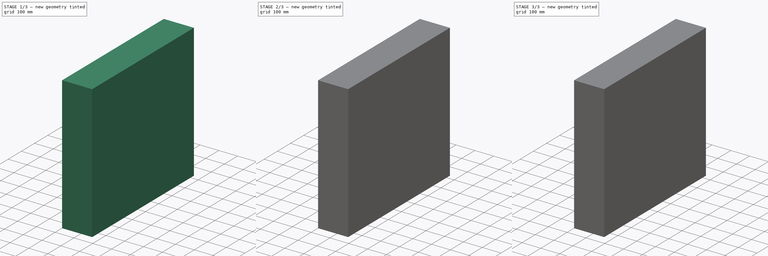
[diagram: build sequence overview — one tinted view per stage of 3, left to right]
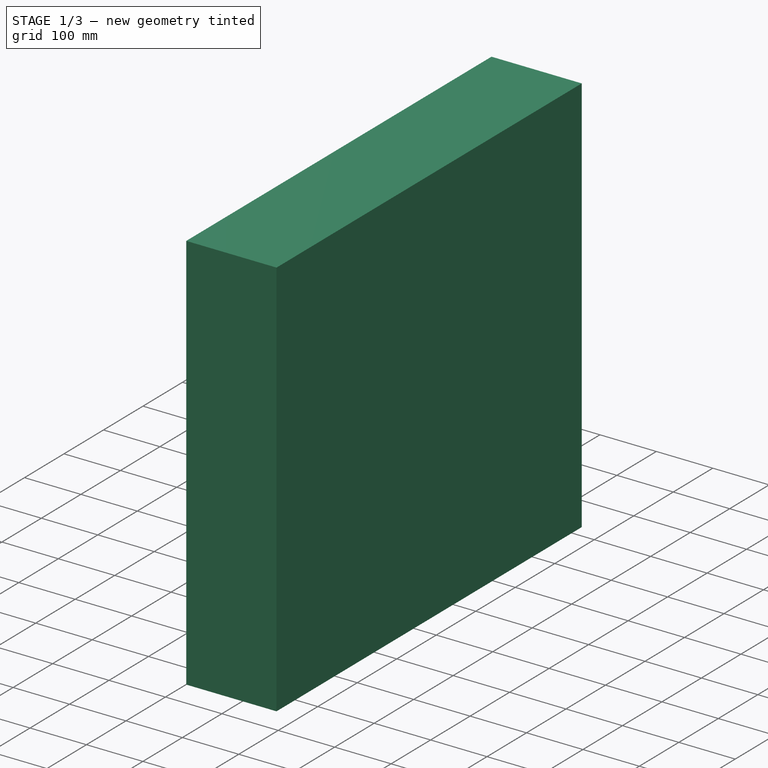
[diagram: stage 1 of 3 — iso view after this stage's code; geometry added in this stage tinted green]
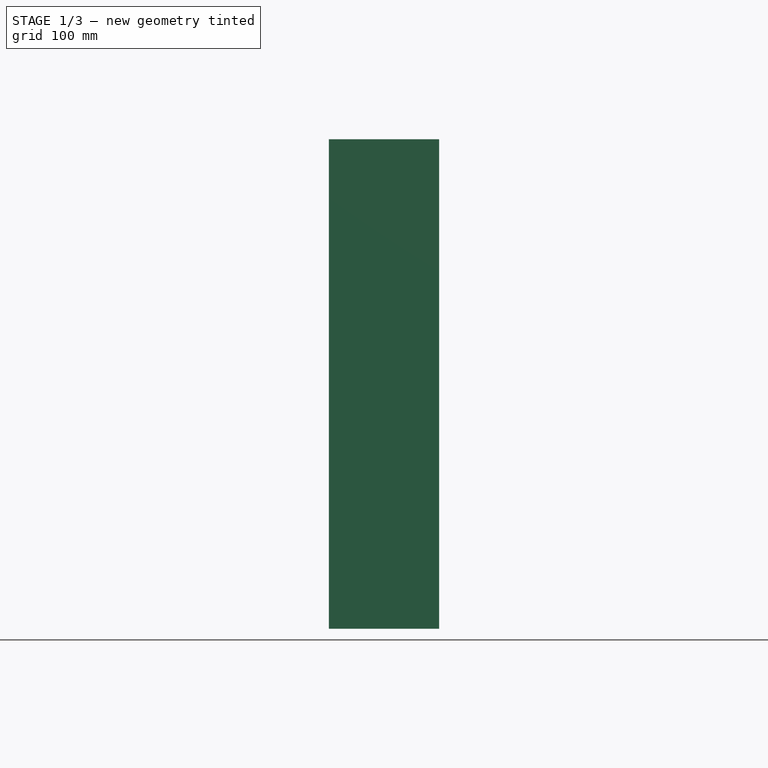
[diagram: stage 1 of 3 — front view after this stage's code; geometry added in this stage tinted green]
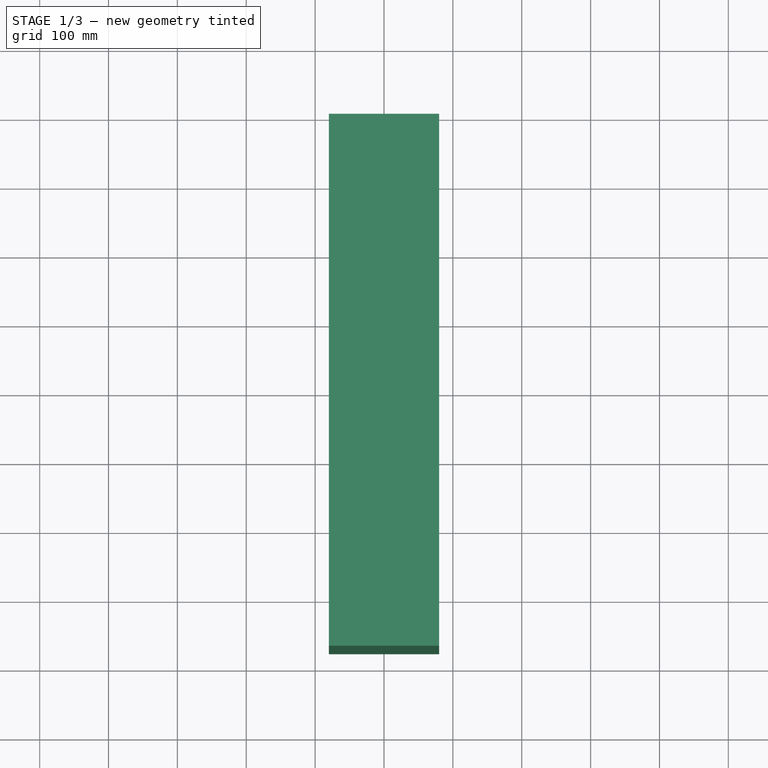
[diagram: stage 1 of 3 — top view after this stage's code; geometry added in this stage tinted green]
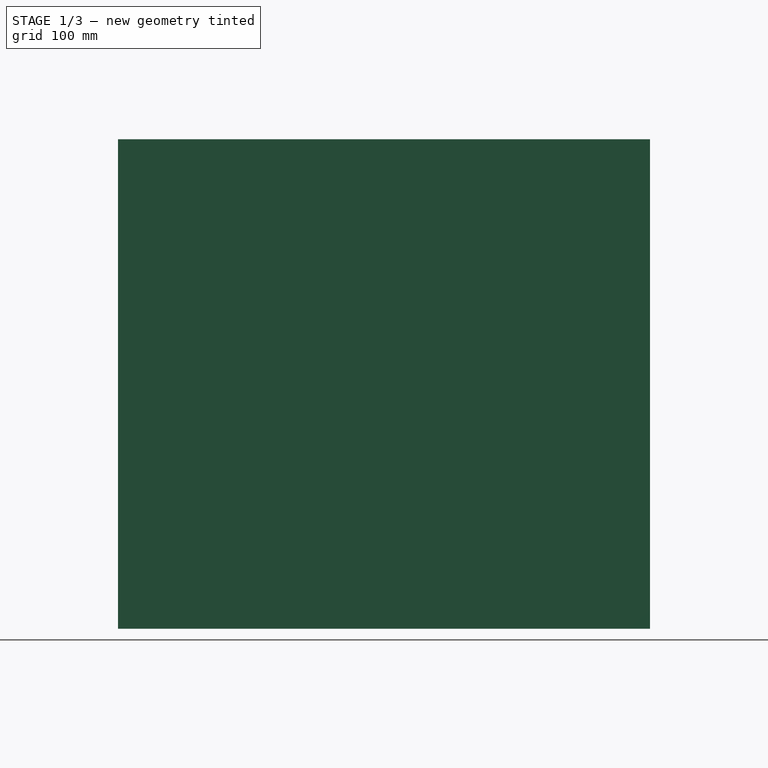
[diagram: stage 1 of 3 — right view after this stage's code; geometry added in this stage tinted green]
FCSTD DOCUMENT  (FreeCAD 0.18R16131 (Git))
Label: My Rectangular Waveguide 1
License: All rights reserved
LicenseURL: http://en.wikipedia.org/wiki/All_rights_reserved
objects: Sketcher::SketchObject×9, Part::Extrusion×6, App::MeasureDistance×1
note: 15 computed .brp shape members not serialized (recipe doc carries the construction recipe); baked Part::Feature solids carry a one-line shape summary decoded from their .brp

FEATURE [Part::Extrusion] Extrude003  label="wall_4"
  Base = -> Sketch004
  Dir = (0,0,1)
  DirMode = 2
  FaceMakerClass = Part::FaceMakerBullseye
  LengthFwd = 420
  LengthRev = 0
  Solid = true
  Symmetric = false
FEATURE [Sketcher::SketchObject] Sketch006  label="simbox sketchbox"
  Placement = pos=(-80,0,0) rot=(0.57735,0.57735,0.57735;2.0944rad)
  sketch-geometry (4):
    g0: LineSegment StartX=-375.787 StartY=595.416 StartZ=0 EndX=396.903 EndY=595.416 EndZ=0
    g1: LineSegment StartX=396.903 StartY=595.416 StartZ=0 EndX=396.903 EndY=-115.511 EndZ=0
    g2: LineSegment StartX=396.903 StartY=-115.511 StartZ=0 EndX=-375.787 EndY=-115.511 EndZ=0
    g3: LineSegment StartX=-375.787 StartY=-115.511 StartZ=0 EndX=-375.787 EndY=595.416 EndZ=0
  constraints (8):
    c: Coincident(g0,g1)
    c: Coincident(g1,g2)
    c: Coincident(g2,g3)
    c: Coincident(g3,g0)
    c: Horizontal(g0)
    c: Horizontal(g2)
    c: Vertical(g1)
    c: Vertical(g3)
FEATURE [Part::Extrusion] Extrude005  label="simbox"
  Base = -> Sketch006
  Dir = (1,-1e-16,2e-16)
  DirMode = 2
  FaceMakerClass = Part::FaceMakerBullseye
  LengthFwd = 160
  LengthRev = 0
  Solid = true
  Symmetric = false
FEATURE [App::MeasureDistance] Distance  label="Distance: 72.034 mm"
  Distance = 72.0338
  P1 = (44.8167,-36.0134,420)
  P2 = (44.8167,36.0134,418.996)
FEATURE [Sketcher::SketchObject] Sketch007  label="YZ plane"
  Placement = pos=(0,0,0) rot=(0.57735,0.57735,0.57735;2.0944rad)
  sketch-geometry (4):
    g0: LineSegment StartX=-43.8498 StartY=421.649 StartZ=0 EndX=44.2368 EndY=421.649 EndZ=0
    g1: LineSegment StartX=44.2368 StartY=421.649 StartZ=0 EndX=44.2368 EndY=0 EndZ=0
    g2: LineSegment StartX=44.2368 StartY=0 StartZ=0 EndX=-43.8498 EndY=0 EndZ=0
    g3: LineSegment StartX=-43.8498 StartY=0 StartZ=0 EndX=-43.8498 EndY=421.649 EndZ=0
  constraints (9):
    c: Coincident(g0,g1)
    c: Coincident(g1,g2)
    c: Coincident(g2,g3)
    c: Coincident(g3,g0)
    c: Horizontal(g0)
    c: Horizontal(g2)
    c: Vertical(g1)
    c: Vertical(g3)
    c: PointOnObject(g1,g-1)
FEATURE [Sketcher::SketchObject] Sketch008  label="XZ plane"
  Placement = pos=(0,0,0) rot=(-1,0,0;4.71239rad)
  sketch-geometry (4):
    g0: LineSegment StartX=-50.1131 StartY=0 StartZ=0 EndX=50.7583 EndY=0 EndZ=0
    g1: LineSegment StartX=50.7583 StartY=0 StartZ=0 EndX=50.7583 EndY=420.147 EndZ=0
    g2: LineSegment StartX=50.7583 StartY=420.147 StartZ=0 EndX=-50.1131 EndY=420.147 EndZ=0
    g3: LineSegment StartX=-50.1131 StartY=420.147 StartZ=0 EndX=-50.1131 EndY=0 EndZ=0
  constraints (9):
    c: Coincident(g0,g1)
    c: Coincident(g1,g2)
    c: Coincident(g2,g3)
    c: Coincident(g3,g0)
    c: Horizontal(g0)
    c: Horizontal(g2)
    c: Vertical(g1)
    c: Vertical(g3)
    c: PointOnObject(g0,g-1)
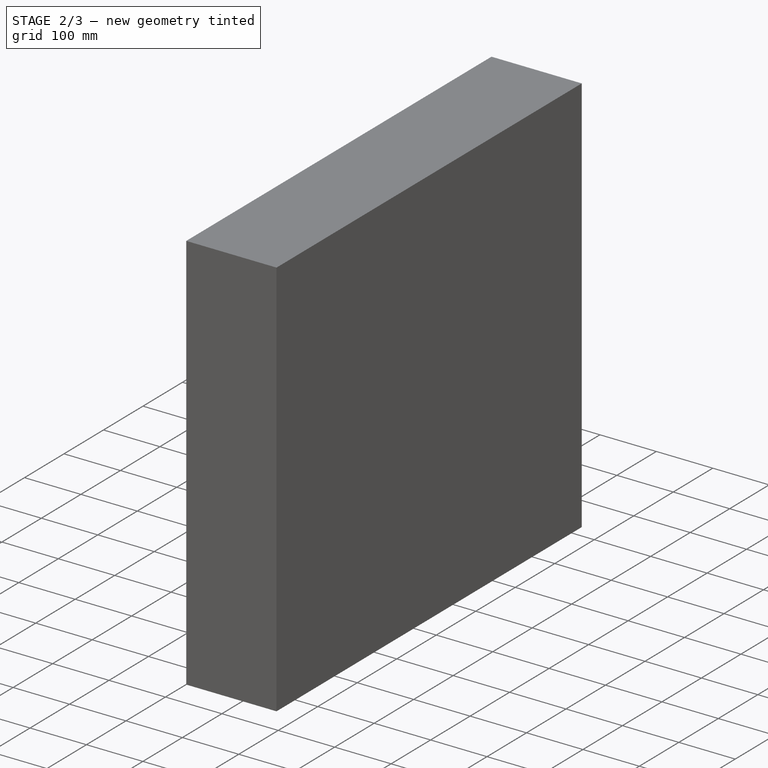
[diagram: stage 2 of 3 — iso view after this stage's code; geometry added in this stage tinted green]
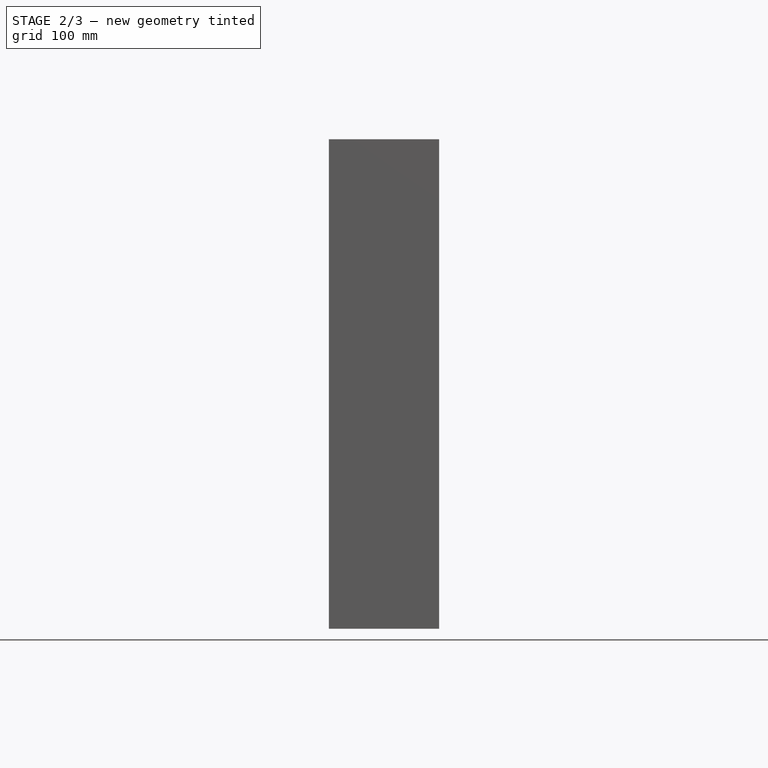
[diagram: stage 2 of 3 — front view after this stage's code; geometry added in this stage tinted green]
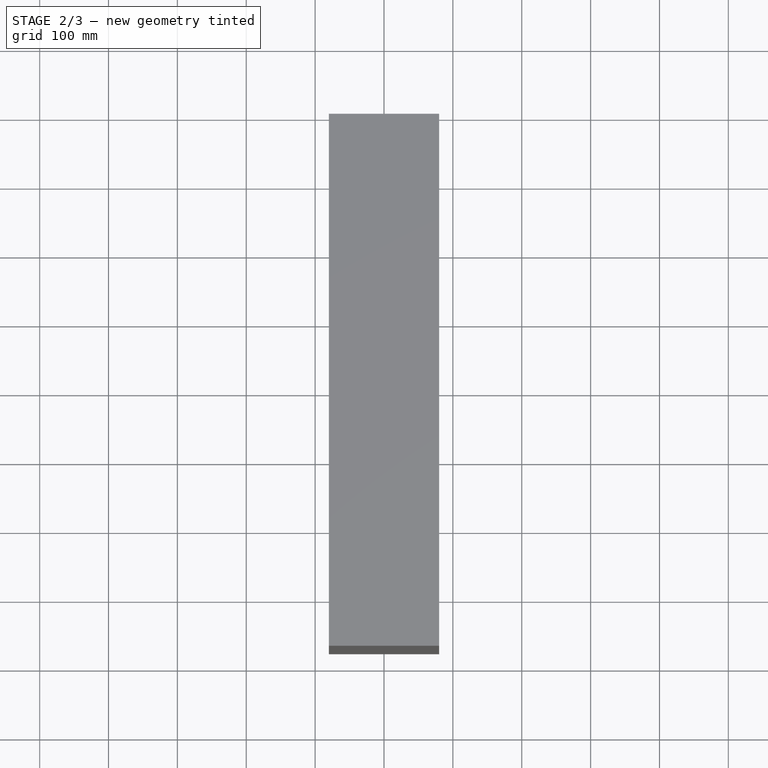
[diagram: stage 2 of 3 — top view after this stage's code; geometry added in this stage tinted green]
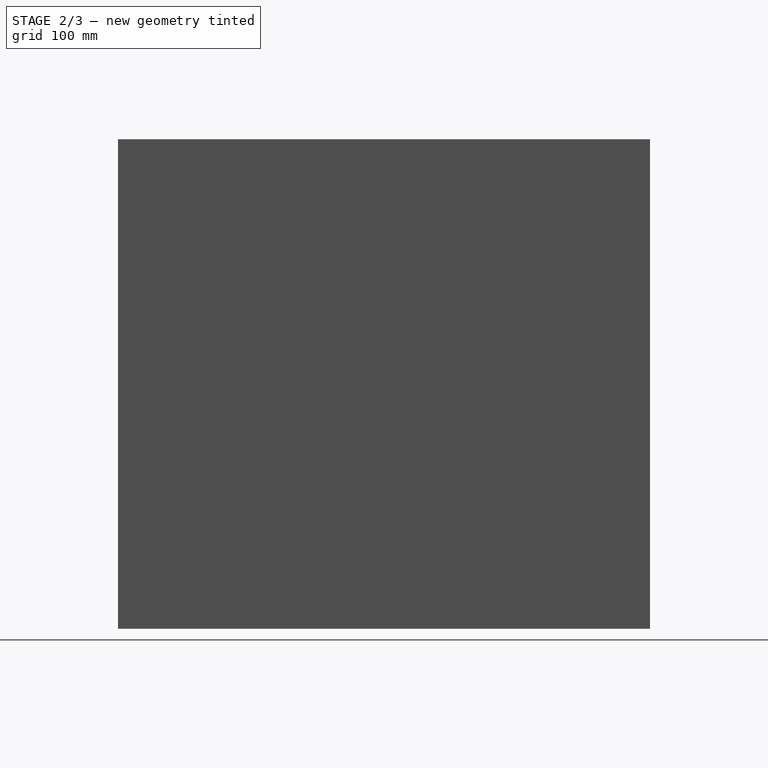
[diagram: stage 2 of 3 — right view after this stage's code; geometry added in this stage tinted green]
FEATURE [Part::Extrusion] Extrude002  label="wall_3"
  Base = -> Sketch003
  Dir = (0,0,1)
  DirMode = 2
  FaceMakerClass = Part::FaceMakerBullseye
  LengthFwd = 420
  LengthRev = 0
  Solid = true
  Symmetric = false
FEATURE [Sketcher::SketchObject] Sketch005  label="excitation sketch"
  MapMode = 5
  Placement = pos=(0,0,0) rot=(1,0,0;3.14159rad)
  Support = -> [Extrude003]
  sketch-geometry (4):
    g0: LineSegment StartX=-43.9178 StartY=33.6823 StartZ=0 EndX=45.2272 EndY=33.6823 EndZ=0
    g1: LineSegment StartX=45.2272 StartY=33.6823 StartZ=0 EndX=45.2272 EndY=-33.4417 EndZ=0
    g2: LineSegment StartX=45.2272 StartY=-33.4417 StartZ=0 EndX=-43.9178 EndY=-33.4417 EndZ=0
    g3: LineSegment StartX=-43.9178 StartY=-33.4417 StartZ=0 EndX=-43.9178 EndY=33.6823 EndZ=0
  constraints (8):
    c: Coincident(g0,g1)
    c: Coincident(g1,g2)
    c: Coincident(g2,g3)
    c: Coincident(g3,g0)
    c: Horizontal(g0)
    c: Horizontal(g2)
    c: Vertical(g1)
    c: Vertical(g3)
FEATURE [Part::Extrusion] Extrude004  label="excitation"
  Base = -> Sketch005
  Dir = (0,0,-1)
  DirMode = 2
  FaceMakerClass = Part::FaceMakerBullseye
  LengthFwd = 0
  LengthRev = 5
  Solid = true
  Symmetric = false
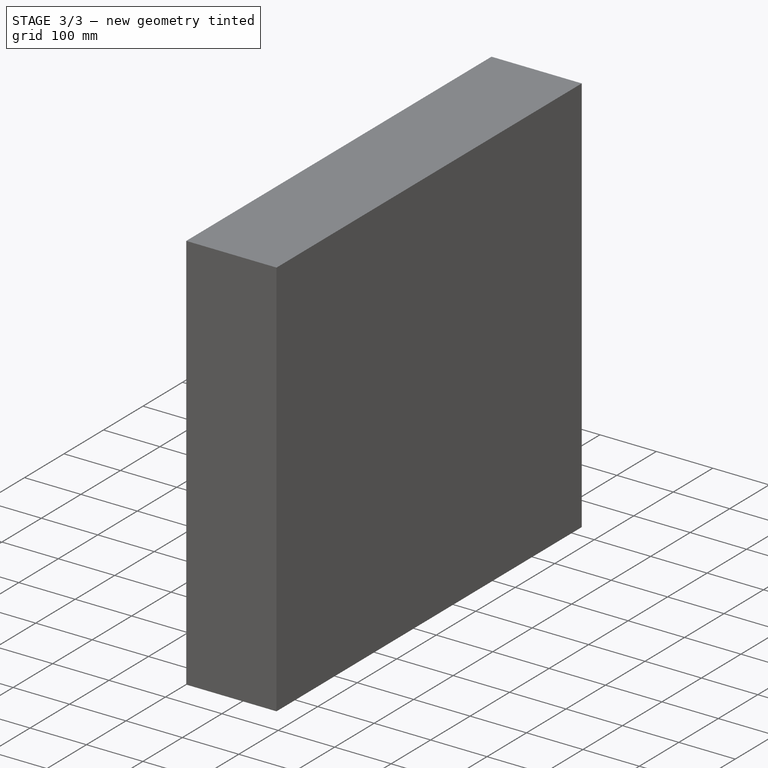
[diagram: stage 3 of 3 — iso view after this stage's code; geometry added in this stage tinted green]
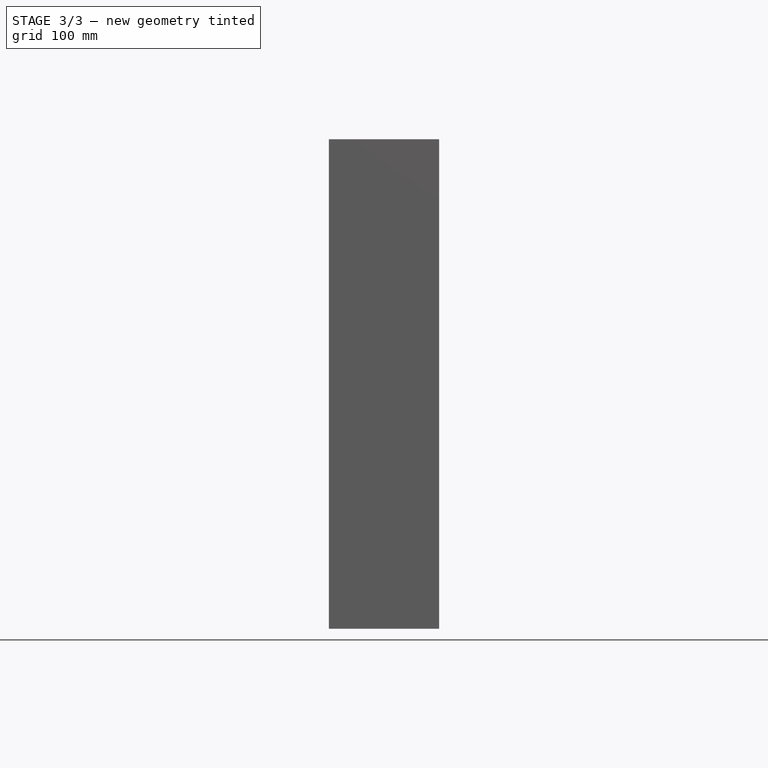
[diagram: stage 3 of 3 — front view after this stage's code; geometry added in this stage tinted green]
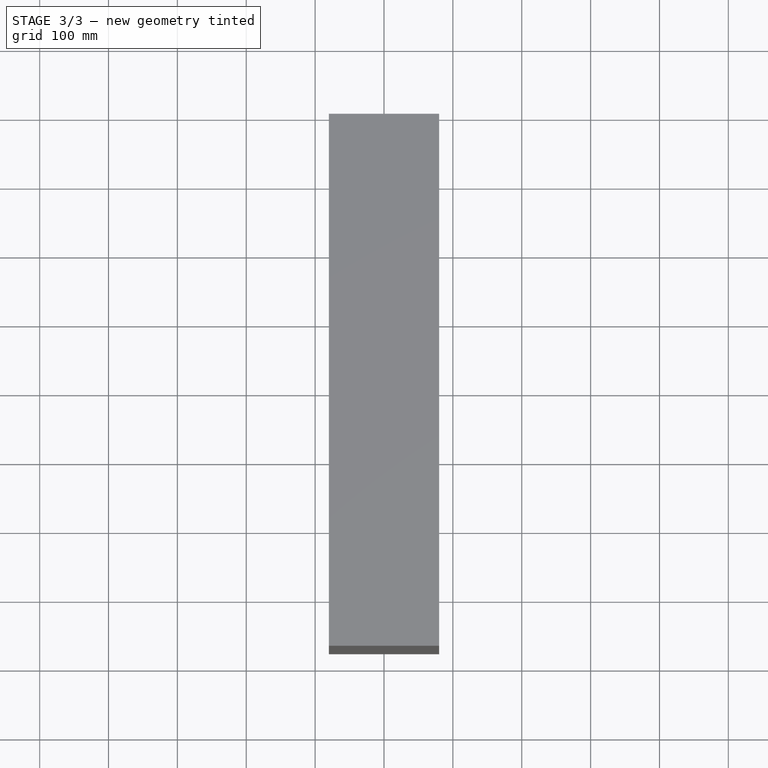
[diagram: stage 3 of 3 — top view after this stage's code; geometry added in this stage tinted green]
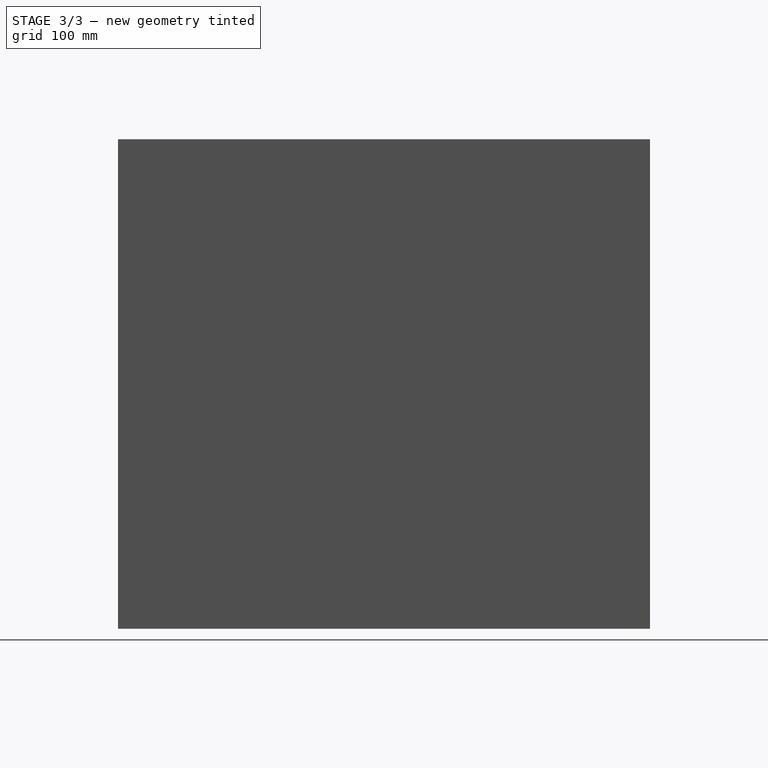
[diagram: stage 3 of 3 — right view after this stage's code; geometry added in this stage tinted green]
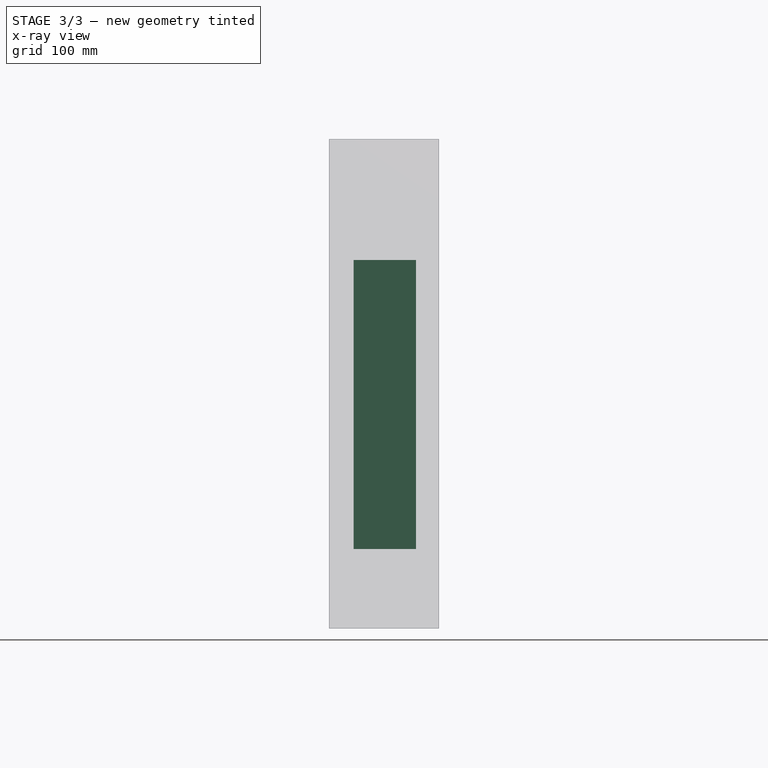
[diagram: stage 3 of 3 — x-ray composite at the front view; earlier geometry ghosted, this stage's added geometry solid]
FEATURE [Sketcher::SketchObject] Sketch
  sketch-geometry (4):
    g0: LineSegment StartX=-39.837 StartY=29.7889 StartZ=0 EndX=40.1927 EndY=29.7889 EndZ=0
    g1: LineSegment StartX=40.1927 StartY=29.7889 StartZ=0 EndX=40.1927 EndY=-30.1445 EndZ=0
    g2: LineSegment StartX=40.1927 StartY=-30.1445 StartZ=0 EndX=-39.837 EndY=-30.1445 EndZ=0
    g3: LineSegment StartX=-39.837 StartY=-30.1445 StartZ=0 EndX=-39.837 EndY=29.7889 EndZ=0
  constraints (8):
    c: Coincident(g0,g1)
    c: Coincident(g1,g2)
    c: Coincident(g2,g3)
    c: Coincident(g3,g0)
    c: Horizontal(g0)
    c: Horizontal(g2)
    c: Vertical(g1)
    c: Vertical(g3)
FEATURE [Sketcher::SketchObject] Sketch001
  MapMode = 2
  Support = -> [Sketch]
  sketch-geometry (4):
    g0: LineSegment StartX=-43.7496 StartY=34.9463 StartZ=0 EndX=-39.837 EndY=34.9463 EndZ=0
    g1: LineSegment StartX=-39.837 StartY=34.9463 StartZ=0 EndX=-39.837 EndY=-35.6577 EndZ=0
    g2: LineSegment StartX=-39.837 StartY=-35.6577 StartZ=0 EndX=-43.7496 EndY=-35.6577 EndZ=0
    g3: LineSegment StartX=-43.7496 StartY=-35.6577 StartZ=0 EndX=-43.7496 EndY=34.9463 EndZ=0
  constraints (8):
    c: Coincident(g0,g1)
    c: Coincident(g1,g2)
    c: Coincident(g2,g3)
    c: Coincident(g3,g0)
    c: Horizontal(g0)
    c: Horizontal(g2)
    c: Vertical(g1)
    c: Vertical(g3)
FEATURE [Sketcher::SketchObject] Sketch002
  MapMode = 2
  Support = -> [Sketch001]
  sketch-geometry (4):
    g0: LineSegment StartX=-44.1053 StartY=-30.3224 StartZ=0 EndX=46.4173 EndY=-30.3224 EndZ=0
    g1: LineSegment StartX=46.4173 StartY=-30.3224 StartZ=0 EndX=46.4173 EndY=-34.235 EndZ=0
    g2: LineSegment StartX=46.4173 StartY=-34.235 StartZ=0 EndX=-44.1053 EndY=-34.235 EndZ=0
    g3: LineSegment StartX=-44.1053 StartY=-34.235 StartZ=0 EndX=-44.1053 EndY=-30.3224 EndZ=0
  constraints (8):
    c: Coincident(g0,g1)
    c: Coincident(g1,g2)
    c: Coincident(g2,g3)
    c: Coincident(g3,g0)
    c: Horizontal(g0)
    c: Horizontal(g2)
    c: Vertical(g1)
    c: Vertical(g3)
FEATURE [Sketcher::SketchObject] Sketch003
  MapMode = 2
  Support = -> [Sketch002]
  sketch-geometry (4):
    g0: LineSegment StartX=40.0149 StartY=-36.0134 StartZ=0 EndX=44.8167 EndY=-36.0134 EndZ=0
    g1: LineSegment StartX=44.8167 StartY=-36.0134 StartZ=0 EndX=44.8167 EndY=36.0134 EndZ=0
    g2: LineSegment StartX=44.8167 StartY=36.0134 StartZ=0 EndX=40.0149 EndY=36.0134 EndZ=0
    g3: LineSegment StartX=40.0149 StartY=36.0134 StartZ=0 EndX=40.0149 EndY=-36.0134 EndZ=0
  constraints (8):
    c: Coincident(g0,g1)
    c: Coincident(g1,g2)
    c: Coincident(g2,g3)
    c: Coincident(g3,g0)
    c: Horizontal(g0)
    c: Horizontal(g2)
    c: Vertical(g1)
    c: Vertical(g3)
FEATURE [Sketcher::SketchObject] Sketch004
  MapMode = 2
  Support = -> [Sketch003]
  sketch-geometry (4):
    g0: LineSegment StartX=46.4173 StartY=29.7889 StartZ=0 EndX=-46.0616 EndY=29.7889 EndZ=0
    g1: LineSegment StartX=-46.0616 StartY=29.7889 StartZ=0 EndX=-46.0616 EndY=34.4128 EndZ=0
    g2: LineSegment StartX=-46.0616 StartY=34.4128 StartZ=0 EndX=46.4173 EndY=34.4128 EndZ=0
    g3: LineSegment StartX=46.4173 StartY=34.4128 StartZ=0 EndX=46.4173 EndY=29.7889 EndZ=0
  constraints (8):
    c: Coincident(g0,g1)
    c: Coincident(g1,g2)
    c: Coincident(g2,g3)
    c: Coincident(g3,g0)
    c: Horizontal(g0)
    c: Horizontal(g2)
    c: Vertical(g1)
    c: Vertical(g3)
FEATURE [Part::Extrusion] Extrude  label="wall_1"
  Base = -> Sketch001
  Dir = (0,0,1)
  DirMode = 2
  FaceMakerClass = Part::FaceMakerBullseye
  LengthFwd = 420
  LengthRev = 0
  Solid = true
  Symmetric = false
FEATURE [Part::Extrusion] Extrude001  label="wall_2"
  Base = -> Sketch002
  Dir = (0,0,1)
  DirMode = 2
  FaceMakerClass = Part::FaceMakerBullseye
  LengthFwd = 420
  LengthRev = 0
  Solid = true
  Symmetric = false
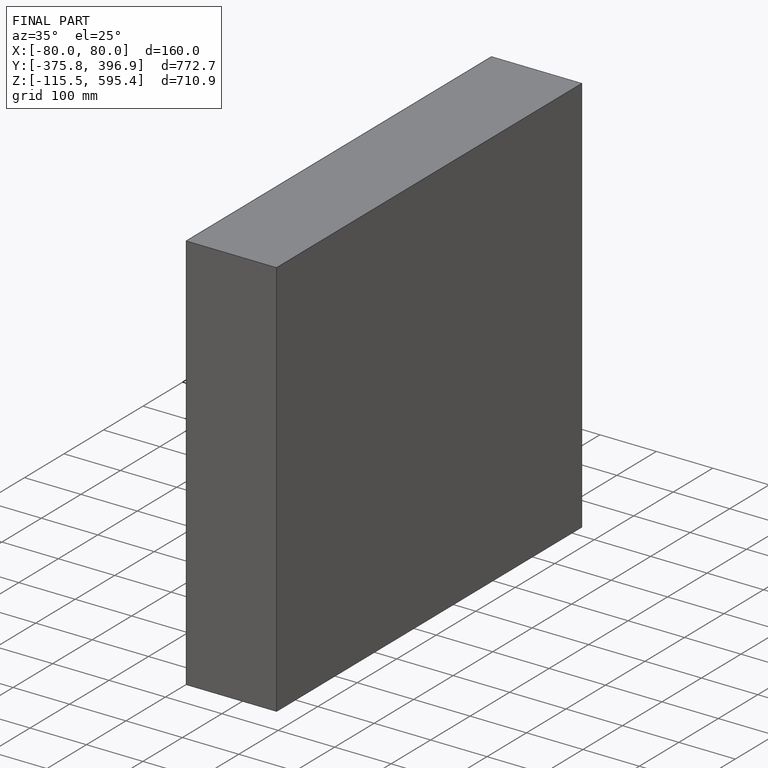
[diagram: finished part — iso view with bounding-box wireframe]
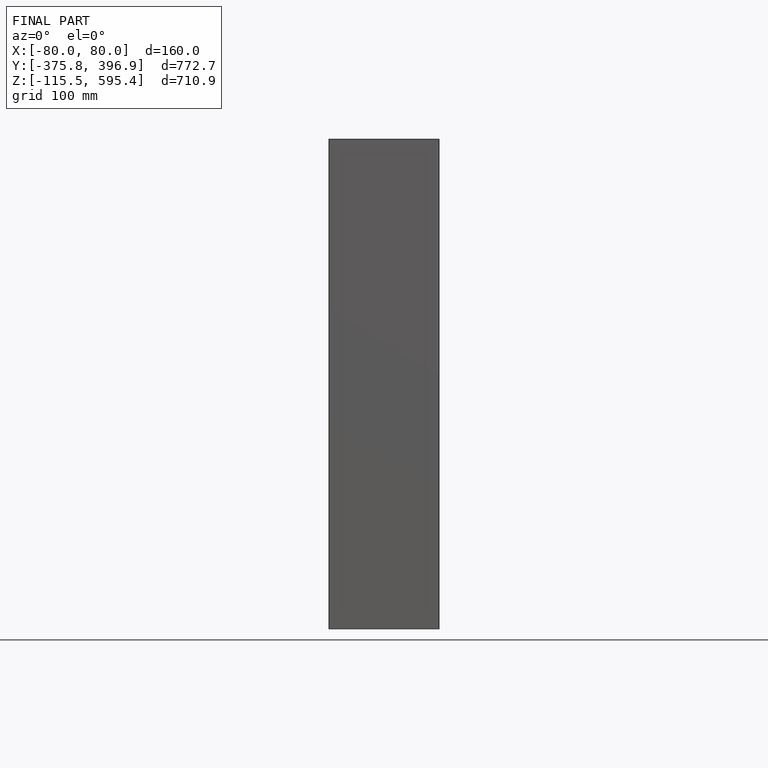
[diagram: finished part — front view with bounding-box wireframe]
